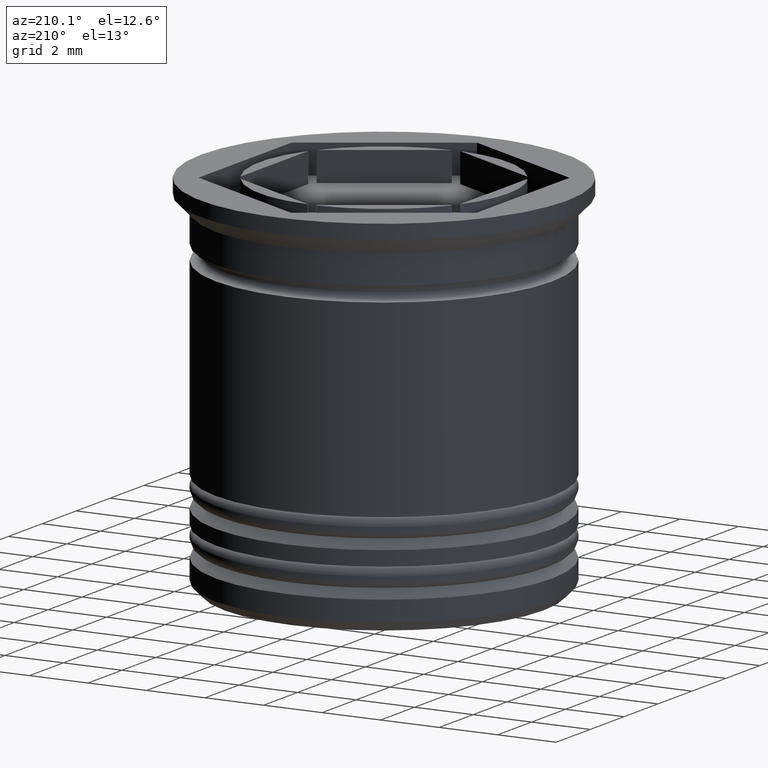
[diagram: clean part render]
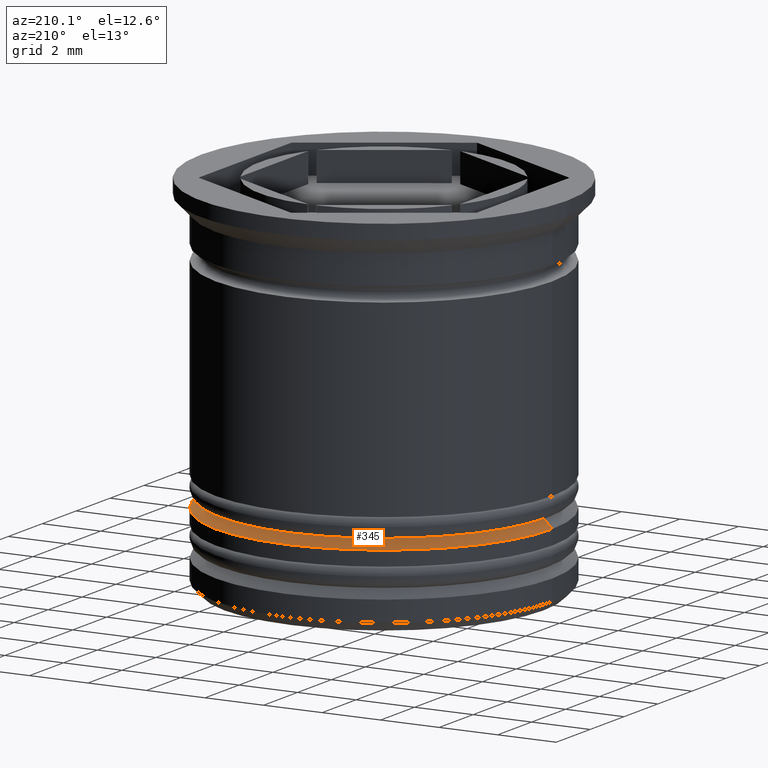
[diagram: same view with one face highlighted and labeled with its STEP entity id]
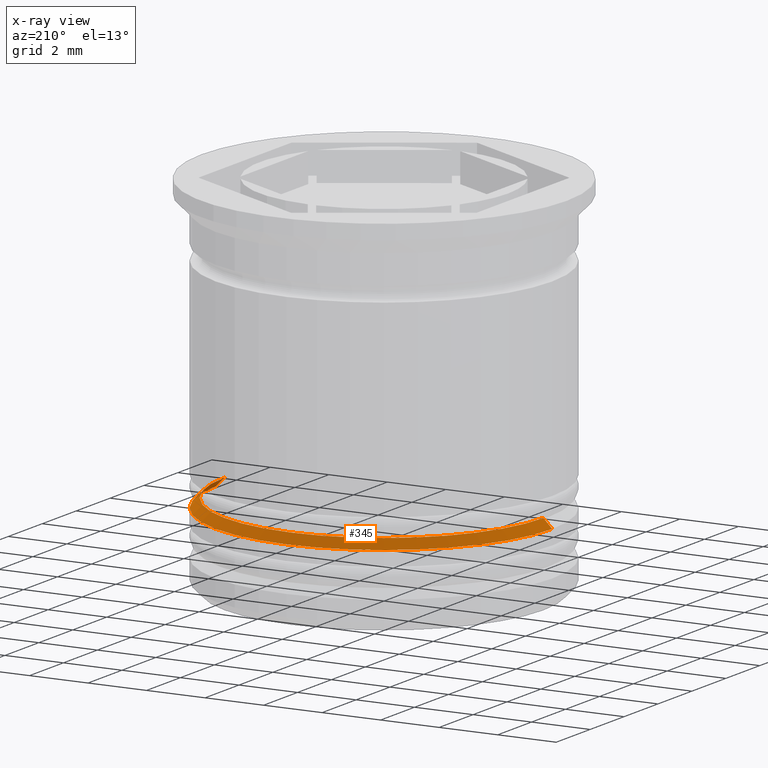
[diagram: x-ray of the same camera — body ghosted, the highlighted face saturated]
A machine part, auxiliary view. The second image highlights one B-rep face of the part: STEP entity #345.
The next image is the same camera in x-ray: the body ghosted, the highlighted face saturated — about 2% of this face is hidden behind the body in this view.
In plain terms, the highlighted conical surface has half-angle 45 deg.
Its self-contained STEP definition (entity closure, byte-faithful):
#16 = DIRECTION ( 'NONE',  ( 0.7071067811865512365, 8.659560562354978464E-17, -0.7071067811865439090 ) ) ;
#27 = DIRECTION ( 'NONE',  ( -1.000000000000000000, 0.000000000000000000, 0.000000000000000000 ) ) ;
#50 = EDGE_CURVE ( 'NONE', #567, #1537, #1969, .T. ) ;
#96 = ORIENTED_EDGE ( 'NONE', *, *, #1107, .F. ) ;
#174 = CARTESIAN_POINT ( 'NONE',  ( 5.750000000000001776, 0.000000000000000000, -10.00000000000000533 ) ) ;
#216 = AXIS2_PLACEMENT_3D ( 'NONE', #1710, #1284, #1116 ) ;
#316 = LINE ( 'NONE', #591, #1493 ) ;
#345 = ADVANCED_FACE ( 'NONE', ( #1314 ), #1241, .T. ) ;
#394 = DIRECTION ( 'NONE',  ( -0.7071067811865512365, 0.000000000000000000, -0.7071067811865439090 ) ) ;
#458 = VERTEX_POINT ( 'NONE', #705 ) ;
#567 = VERTEX_POINT ( 'NONE', #1174 ) ;
#582 = VECTOR ( 'NONE', #394, 1000.000000000000000 ) ;
#590 = LINE ( 'NONE', #1851, #582 ) ;
#591 = CARTESIAN_POINT ( 'NONE',  ( 5.249999999999992895, 6.429395695523595278E-16, -9.500000000000001776 ) ) ;
#668 = EDGE_LOOP ( 'NONE', ( #1978, #707, #96, #679 ) ) ;
#674 = AXIS2_PLACEMENT_3D ( 'NONE', #979, #1577, #1899 ) ;
#679 = ORIENTED_EDGE ( 'NONE', *, *, #1902, .F. ) ;
#705 = CARTESIAN_POINT ( 'NONE',  ( -5.750000000000001776, 7.041719095097282852E-16, -10.00000000000000533 ) ) ;
#707 = ORIENTED_EDGE ( 'NONE', *, *, #1290, .T. ) ;
#979 = CARTESIAN_POINT ( 'NONE',  ( 0.000000000000000000, 0.000000000000000000, -10.00000000000000533 ) ) ;
#1107 = EDGE_CURVE ( 'NONE', #458, #1666, #1807, .T. ) ;
#1116 = DIRECTION ( 'NONE',  ( -1.000000000000000000, 0.000000000000000000, 0.000000000000000000 ) ) ;
#1174 = CARTESIAN_POINT ( 'NONE',  ( 5.450000000000000178, 0.000000000000000000, -9.700000000000006395 ) ) ;
#1188 = CARTESIAN_POINT ( 'NONE',  ( -5.450000000000000178, 6.674325055353075238E-16, -9.700000000000006395 ) ) ;
#1241 = CONICAL_SURFACE ( 'NONE', #1735, 5.249999999999992895, 0.7853981633974533860 ) ;
#1284 = DIRECTION ( 'NONE',  ( -0.000000000000000000, -0.000000000000000000, 1.000000000000000000 ) ) ;
#1290 = EDGE_CURVE ( 'NONE', #567, #1666, #316, .T. ) ;
#1314 = FACE_OUTER_BOUND ( 'NONE', #668, .T. ) ;
#1419 = DIRECTION ( 'NONE',  ( 0.000000000000000000, 0.000000000000000000, -1.000000000000000000 ) ) ;
#1493 = VECTOR ( 'NONE', #16, 1000.000000000000000 ) ;
#1537 = VERTEX_POINT ( 'NONE', #1188 ) ;
#1563 = CARTESIAN_POINT ( 'NONE',  ( 0.000000000000000000, 0.000000000000000000, -9.500000000000001776 ) ) ;
#1577 = DIRECTION ( 'NONE',  ( 0.000000000000000000, 0.000000000000000000, -1.000000000000000000 ) ) ;
#1666 = VERTEX_POINT ( 'NONE', #174 ) ;
#1710 = CARTESIAN_POINT ( 'NONE',  ( 0.000000000000000000, 0.000000000000000000, -9.700000000000006395 ) ) ;
#1735 = AXIS2_PLACEMENT_3D ( 'NONE', #1563, #1419, #27 ) ;
#1807 = CIRCLE ( 'NONE', #674, 5.750000000000001776 ) ;
#1851 = CARTESIAN_POINT ( 'NONE',  ( -5.249999999999992895, 0.000000000000000000, -9.500000000000001776 ) ) ;
#1899 = DIRECTION ( 'NONE',  ( -1.000000000000000000, 0.000000000000000000, 0.000000000000000000 ) ) ;
#1902 = EDGE_CURVE ( 'NONE', #1537, #458, #590, .T. ) ;
#1969 = CIRCLE ( 'NONE', #216, 5.450000000000000178 ) ;
#1978 = ORIENTED_EDGE ( 'NONE', *, *, #50, .F. ) ;